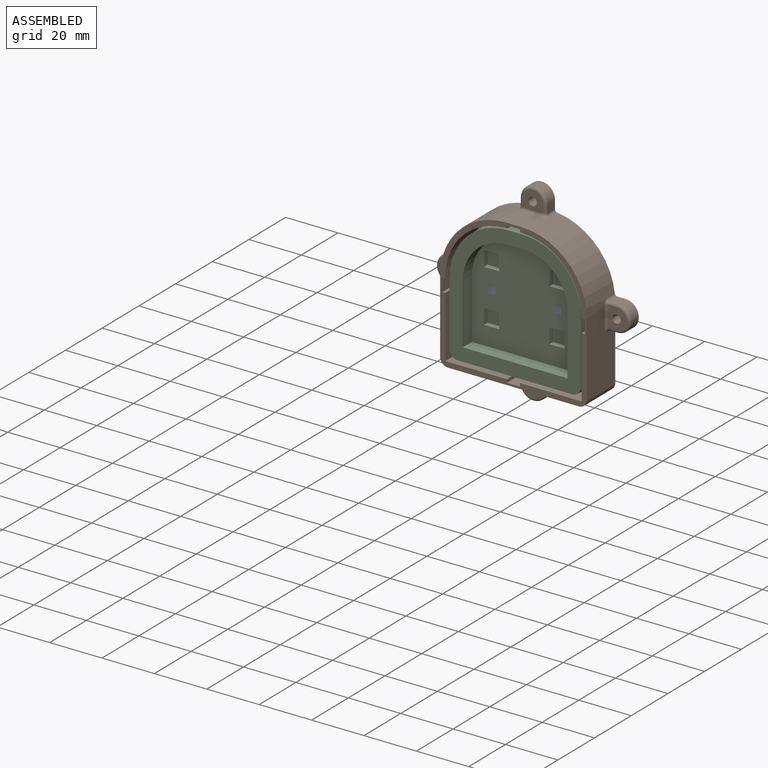
[diagram: assembled view]
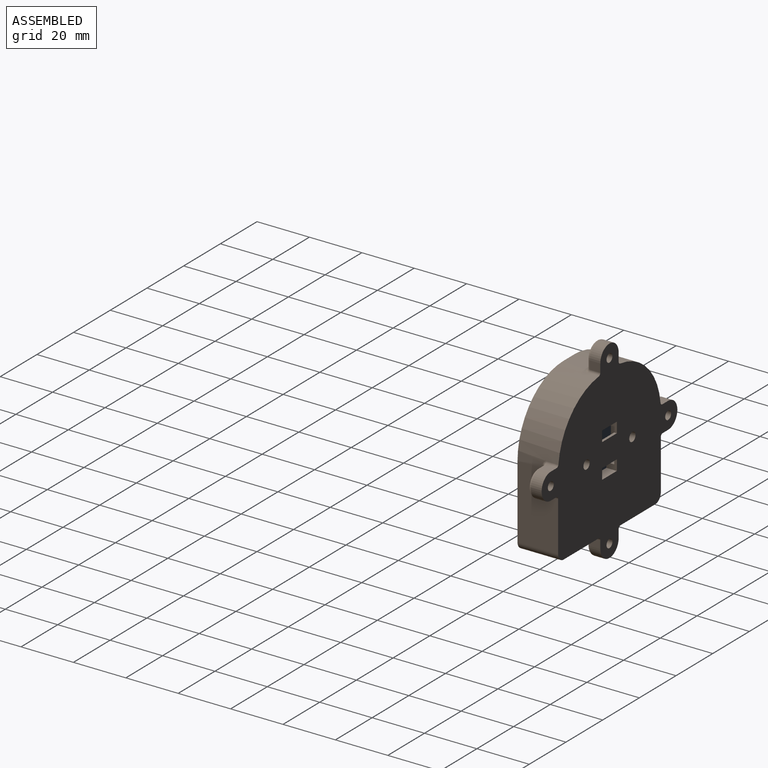
[diagram: assembled view, second angle]
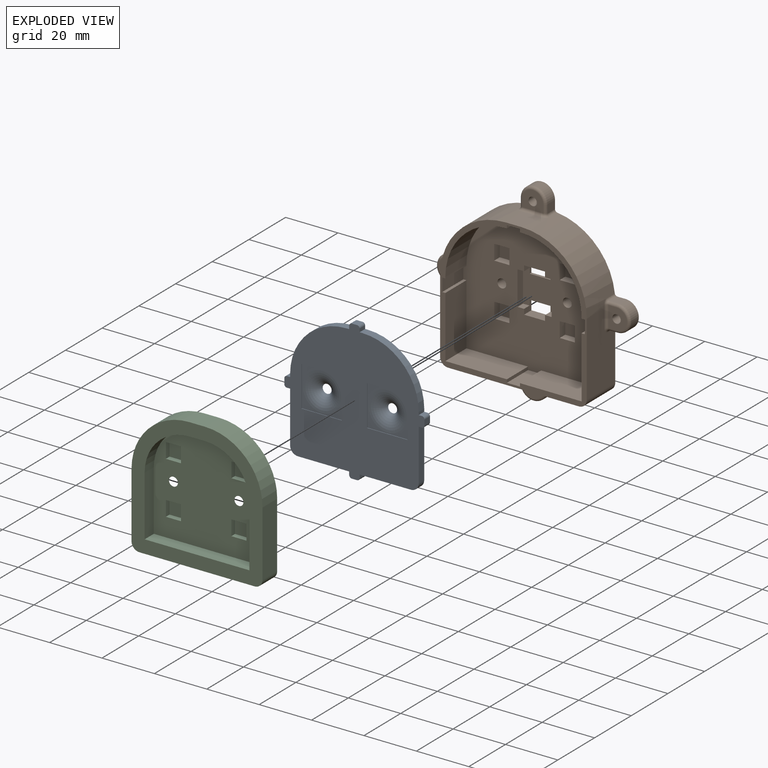
[diagram: exploded view]
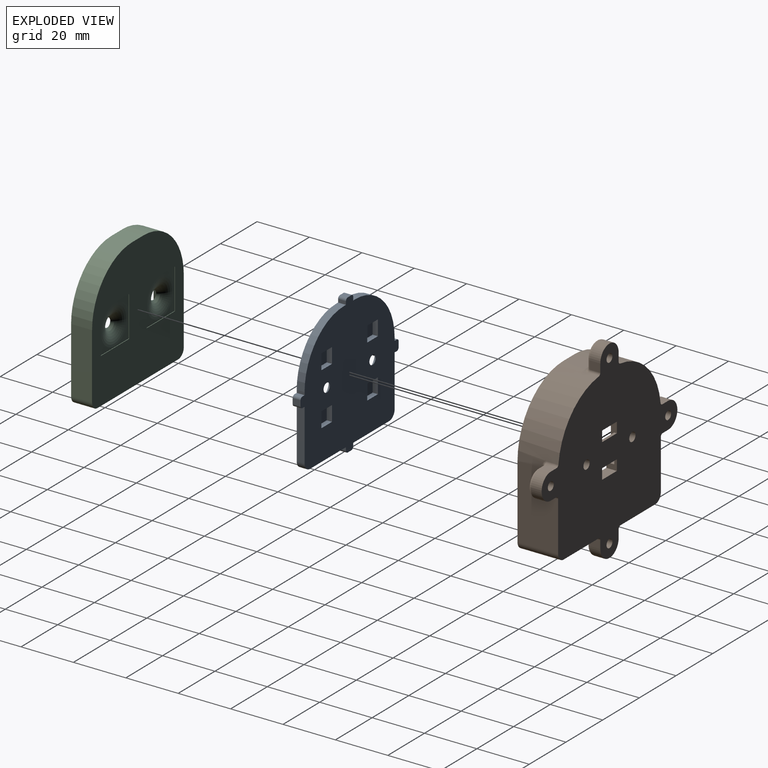
[diagram: exploded view, second angle]
ASSEMBLY  parts=3 mates=2
PART A: 66 faces, bbox 53.5x7.2x53.5 mm
  f0: plane 53.5x53.5mm, normal (0,-1,0), area 1767.7mm2, adj f2,f3,f4,f5,f6,f7,f8,f9
  f1: plane 53.5x53.5mm, normal (0,1,0), area 2089.3mm2, adj f2,f3,f4,f5,f6,f7,f8,f9
  f2: plane 19.55x3mm, normal (0,0,-1), area 58.6mm2, adj f0,f1,f3,f24
  f3: plane 3x1.2mm, normal (-1,0,0), area 3.6mm2, adj f0,f1,f2,f58
  f4: plane 3x2mm, normal (0,0,-1), area 6mm2, adj f0,f1,f58,f59
  f5: plane 3x1.2mm, normal (1,0,0), area 3.6mm2, adj f0,f1,f6,f59
  f6: plane 19.55x3mm, normal (0,0,-1), area 58.6mm2, adj f0,f1,f5,f25
  f7: plane 19.55x3mm, normal (1,0,0), area 58.6mm2, adj f0,f1,f8,f25
  f8: plane 3x1.2mm, normal (0,0,-1), area 3.6mm2, adj f0,f1,f7,f62
  f9: plane 3x2mm, normal (1,0,0), area 6mm2, adj f0,f1,f62,f63
  f10: plane 3x1.2mm, normal (0,0,1), area 3.6mm2, adj f0,f1,f11,f63
  f11: plane 3x1.05mm, normal (1,0,0), area 3.1mm2, adj f0,f1,f10,f12
  f12: cylinder r=21.5mm len=21.5mm, axis (0,1,0), area 101.3mm2, adj f0,f1,f11,f13
  f13: plane 3x1.05mm, normal (0,0,1), area 3.1mm2, adj f0,f1,f12,f14
  f14: plane 3x1.2mm, normal (1,0,0), area 3.6mm2, adj f0,f1,f13,f60
  f15: plane 3x2mm, normal (0,0,1), area 6mm2, adj f0,f1,f60,f61
  f16: plane 3x1.2mm, normal (-1,0,0), area 3.6mm2, adj f0,f1,f17,f61
  f17: plane 3x1.05mm, normal (0,0,1), area 3.2mm2, adj f0,f1,f16,f18
  f18: cylinder r=21.5mm len=21.5mm, axis (0,1,0), area 101.3mm2, adj f0,f1,f17,f19
  f19: plane 3x1.05mm, normal (-1,0,0), area 3.1mm2, adj f0,f1,f18,f20
  f20: plane 3x1.2mm, normal (0,0,1), area 3.6mm2, adj f0,f1,f19,f64
  f21: plane 3x2mm, normal (-1,0,0), area 6mm2, adj f0,f1,f64,f65
  f22: plane 3x1.2mm, normal (0,0,-1), area 3.6mm2, adj f0,f1,f23,f65
  f23: plane 19.55x3mm, normal (-1,0,0), area 58.6mm2, adj f0,f1,f22,f24
  f24: cylinder r=3mm len=3mm, axis (0,1,0), area 14.1mm2, adj f0,f1,f2,f23
  f25: cylinder r=3mm len=3mm, axis (0,-1,0), area 14.1mm2, adj f0,f1,f6,f7
  f26: plane 5.8x2mm, normal (0,0,1), area 11.6mm2, adj f1,f27,f29,f30
  f27: plane 5.8x2mm, normal (1,0,0), area 11.6mm2, adj f1,f26,f28,f30
  f28: plane 5.8x2mm, normal (0,0,-1), area 11.6mm2, adj f1,f27,f29,f30
  f29: plane 5.8x2mm, normal (-1,0,0), area 11.6mm2, adj f1,f26,f28,f30
  f30: plane 5.8x5.8mm, normal (0,1,0), area 33.6mm2, adj f26,f27,f28,f29
  f31: plane 5.8x2mm, normal (1,0,0), area 11.6mm2, adj f1,f32,f34,f35
  f32: plane 5.8x2mm, normal (0,0,-1), area 11.6mm2, adj f1,f31,f33,f35
  f33: plane 5.8x2mm, normal (-1,0,0), area 11.6mm2, adj f1,f32,f34,f35
  f34: plane 5.8x2mm, normal (0,0,1), area 11.6mm2, adj f1,f31,f33,f35
  f35: plane 5.8x5.8mm, normal (0,1,0), area 33.6mm2, adj f31,f32,f33,f34
  f36: plane 5.8x2mm, normal (0,0,1), area 11.6mm2, adj f1,f37,f39,f40
  f37: plane 5.8x2mm, normal (1,0,0), area 11.6mm2, adj f1,f36,f38,f40
  f38: plane 5.8x2mm, normal (0,0,-1), area 11.6mm2, adj f1,f37,f39,f40
  f39: plane 5.8x2mm, normal (-1,0,0), area 11.6mm2, adj f1,f36,f38,f40
  f40: plane 5.8x5.8mm, normal (0,1,0), area 33.6mm2, adj f36,f37,f38,f39
  f41: plane 5.8x2mm, normal (0,0,1), area 11.6mm2, adj f1,f42,f44,f45
  f42: plane 5.8x2mm, normal (1,0,0), area 11.6mm2, adj f1,f41,f43,f45
  f43: plane 5.8x2mm, normal (0,0,-1), area 11.6mm2, adj f1,f42,f44,f45
  f44: plane 5.8x2mm, normal (-1,0,0), area 11.6mm2, adj f1,f41,f43,f45
  f45: plane 5.8x5.8mm, normal (0,1,0), area 33.6mm2, adj f41,f42,f43,f44
  f46: plane 15.4x0.2mm, normal (0,0,-1), area 3.1mm2, adj f0,f47,f49,f50
  f47: plane 15.4x0.2mm, normal (1,0,0), area 3.1mm2, adj f0,f46,f48,f50
  f48: plane 15.4x0.2mm, normal (0,0,1), area 3.1mm2, adj f0,f47,f49,f50
  f49: plane 15.4x0.2mm, normal (-1,0,0), area 3.1mm2, adj f0,f46,f48,f50
  f50: plane 15.4x15.4mm, normal (0,-1,0), area 69.7mm2, adj f46,f47,f48,f49,f56
  f51: plane 15.4x0.2mm, normal (0,0,-1), area 3.1mm2, adj f0,f52,f54,f55
  f52: plane 15.4x0.2mm, normal (1,0,0), area 3.1mm2, adj f0,f51,f53,f55
  f53: plane 15.4x0.2mm, normal (0,0,1), area 3.1mm2, adj f0,f52,f54,f55
  f54: plane 15.4x0.2mm, normal (-1,0,0), area 3.1mm2, adj f0,f51,f53,f55
  f55: plane 15.4x15.4mm, normal (0,-1,0), area 69.7mm2, adj f51,f52,f53,f54,f57
  f56: torus R=7.3mm, axis (0,-1,0), area 174.6mm2, adj f1,f50
  f57: torus R=7.3mm, axis (0,-1,0), area 174.6mm2, adj f1,f55
  f58: cylinder r=1mm len=3mm, axis (0,1,0), area 4.7mm2, adj f0,f1,f3,f4
  f59: cylinder r=1mm len=3mm, axis (0,-1,0), area 4.7mm2, adj f0,f1,f4,f5
  f60: cylinder r=1mm len=3mm, axis (0,1,0), area 4.7mm2, adj f0,f1,f14,f15
  f61: cylinder r=1mm len=3mm, axis (0,-1,0), area 4.7mm2, adj f0,f1,f15,f16
  f62: cylinder r=1mm len=3mm, axis (0,-1,0), area 4.7mm2, adj f0,f1,f8,f9
  f63: cylinder r=1mm len=3mm, axis (0,1,0), area 4.7mm2, adj f0,f1,f9,f10
  f64: cylinder r=1mm len=3mm, axis (0,-1,0), area 4.7mm2, adj f0,f1,f20,f21
  f65: cylinder r=1mm len=3mm, axis (0,1,0), area 4.7mm2, adj f0,f1,f21,f22
PART B: 126 faces, bbox 74.8x15.5x74.8 mm
  f0: plane 54.4x54.4mm, normal (0,-1,0), area 2147.2mm2, adj f3,f4,f5,f6,f10,f11,f17,f18
  f1: cylinder r=25mm len=25mm, axis (0,1,0), area 575.7mm2, adj f7,f12,f13,f16,f94,f95,f96,f102
  f2: cylinder r=25mm len=25mm, axis (0,1,0), area 575.7mm2, adj f7,f12,f15,f16,f78,f79,f81,f87
  f3: plane 23.5x11.5mm, normal (0,0,1), area 270.2mm2, adj f0,f7,f20,f36
  f4: plane 11.5x0.5mm, normal (1,0,0), area 5.8mm2, adj f0,f7,f21,f42
  f5: plane 11.5x0.5mm, normal (0,0,-1), area 5.8mm2, adj f0,f7,f21,f47
  f6: plane 11.5x0.5mm, normal (-1,0,0), area 5.8mm2, adj f0,f7,f23,f39
  f7: plane 56x56mm, normal (0,-1,0), area 362.9mm2, adj f1,f2,f3,f4,f5,f6,f13,f14
  f8: plane 8x1mm, normal (0,0,-1), area 8mm2, adj f12,f25,f27,f35
  f9: plane 8x1mm, normal (0,0,1), area 8mm2, adj f10,f11,f12,f35
  f10: plane 4x4mm, normal (-1,0,0), area 10mm2, adj f0,f9,f12,f28,f31,f35
  f11: plane 4x4mm, normal (1,0,0), area 10mm2, adj f0,f9,f12,f28,f32,f35
  f12: plane 74x74mm, normal (0,1,0), area 3068.4mm2, adj f1,f2,f8,f9,f10,f11,f13,f14
  f13: plane 28x15.5mm, normal (-1,0,0), area 380.9mm2, adj f1,f7,f12,f48,f97,f98,f100
  f14: plane 50x15.5mm, normal (0,0,-1), area 704.7mm2, adj f7,f12,f48,f49,f70,f72,f74,f76
  f15: plane 28x15.5mm, normal (1,0,0), area 380.9mm2, adj f2,f7,f12,f49,f83,f85,f86
  f16: plane 9.5x6mm, normal (0,0,1), area 57mm2, adj f1,f2,f7,f92
  f17: cylinder r=1.7mm len=4mm, axis (0,1,0), area 42.7mm2, adj f0,f12
  f18: cylinder r=1.7mm len=4mm, axis (0,1,0), area 42.7mm2, adj f0,f12
  f19: plane 23.5x11.5mm, normal (0,0,1), area 270.2mm2, adj f0,f7,f24,f38
  f20: plane 23.5x11.5mm, normal (1,0,0), area 270.2mm2, adj f0,f3,f7,f44
  f21: cylinder r=23mm len=23mm, axis (0,1,0), area 415.5mm2, adj f0,f4,f5,f7
  f22: plane 11.5x0.5mm, normal (0,0,-1), area 5.8mm2, adj f0,f7,f23,f45
  f23: cylinder r=23mm len=23mm, axis (0,1,0), area 415.5mm2, adj f0,f6,f7,f22
  f24: plane 23.5x11.5mm, normal (-1,0,0), area 270.2mm2, adj f0,f7,f19,f40
  f25: plane 4x4mm, normal (1,0,0), area 10mm2, adj f0,f8,f12,f26,f34,f35
  f26: plane 8x4mm, normal (0,0,1), area 32mm2, adj f0,f12,f25,f27
  f27: plane 4x4mm, normal (-1,0,0), area 10mm2, adj f0,f8,f12,f26,f29,f35
  f28: plane 8x4mm, normal (0,0,-1), area 32mm2, adj f0,f10,f11,f12
  f29: plane 3x2.5mm, normal (0,0,1), area 7.5mm2, adj f0,f27,f30,f35
  f30: plane 13x3mm, normal (-1,0,0), area 39mm2, adj f0,f29,f31,f35
  f31: plane 3x2.5mm, normal (0,0,-1), area 7.5mm2, adj f0,f10,f30,f35
  f32: plane 3x2.5mm, normal (0,0,-1), area 7.5mm2, adj f0,f11,f33,f35
  f33: plane 13x3mm, normal (1,0,0), area 39mm2, adj f0,f32,f34,f35
  f34: plane 3x2.5mm, normal (0,0,1), area 7.5mm2, adj f0,f25,f33,f35
  f35: plane 13x13mm, normal (0,-1,0), area 137mm2, adj f8,f9,f10,f11,f25,f27,f29,f30
  f36: plane 11.5x1.2mm, normal (1,0,0), area 13.8mm2, adj f0,f3,f7,f37
  f37: plane 11.5x5mm, normal (0,0,1), area 57.5mm2, adj f0,f7,f36,f38
  f38: plane 11.5x1.2mm, normal (-1,0,0), area 13.8mm2, adj f0,f7,f19,f37
  f39: plane 11.5x1.2mm, normal (0,0,-1), area 13.8mm2, adj f0,f6,f7,f41
  f40: plane 11.5x1.2mm, normal (0,0,1), area 13.8mm2, adj f0,f7,f24,f41
  f41: plane 11.5x5mm, normal (-1,0,0), area 57.5mm2, adj f0,f7,f39,f40
  f42: plane 11.5x1.2mm, normal (0,0,-1), area 13.8mm2, adj f0,f4,f7,f43
  f43: plane 11.5x5mm, normal (1,0,0), area 57.5mm2, adj f0,f7,f42,f44
  f44: plane 11.5x1.2mm, normal (0,0,1), area 13.8mm2, adj f0,f7,f20,f43
  f45: plane 11.5x1.2mm, normal (-1,0,0), area 13.8mm2, adj f0,f7,f22,f46
  f46: plane 11.5x5mm, normal (0,0,-1), area 57.5mm2, adj f0,f7,f45,f47
  f47: plane 11.5x1.2mm, normal (1,0,0), area 13.8mm2, adj f0,f5,f7,f46
  f48: cylinder r=3mm len=15.5mm, axis (0,1,0), area 73mm2, adj f7,f12,f13,f14
  f49: cylinder r=3mm len=15.5mm, axis (0,-1,0), area 73mm2, adj f7,f12,f14,f15
  f50: plane 4x3.17mm, normal (1,0,0), area 12.7mm2, adj f12,f51,f87,f89
  f51: cylinder r=5mm len=10mm, axis (0,1,0), area 62.8mm2, adj f12,f50,f52,f91
  f52: plane 4x3.17mm, normal (-1,0,0), area 12.7mm2, adj f12,f51,f93,f96
  f53: cylinder r=1.6mm len=5mm, axis (0,1,0), area 50.3mm2, adj f12,f54
  f54: plane 8x7.02mm, normal (0,-1,0), area 41.1mm2, adj f53,f89,f90,f91,f92,f93,f94
  f55: plane 4x3mm, normal (-1,0,0), area 12mm2, adj f12,f56,f75,f77
  f56: cylinder r=5mm len=10mm, axis (0,1,0), area 62.8mm2, adj f12,f55,f57,f73
  f57: plane 4x3mm, normal (1,0,0), area 12mm2, adj f12,f56,f70,f71
  f58: cylinder r=1.6mm len=5mm, axis (0,1,0), area 50.3mm2, adj f12,f59
  f59: plane 8x7mm, normal (0,-1,0), area 41.1mm2, adj f58,f71,f73,f74,f75
  f60: plane 4x3.17mm, normal (0,0,1), area 12.7mm2, adj f12,f61,f103,f105
  f61: cylinder r=5mm len=10mm, axis (0,1,0), area 62.8mm2, adj f12,f60,f62,f101
  f62: plane 4x3mm, normal (0,0,-1), area 12mm2, adj f12,f61,f97,f99
  f63: cylinder r=1.6mm len=5mm, axis (0,1,0), area 50.3mm2, adj f12,f64
  f64: plane 8x7.02mm, normal (0,-1,0), area 41.1mm2, adj f63,f99,f100,f101,f102,f103
  f65: plane 4x3mm, normal (0,0,-1), area 12mm2, adj f12,f66,f84,f86
  f66: cylinder r=5mm len=10mm, axis (0,1,0), area 62.8mm2, adj f12,f65,f67,f82
  f67: plane 4x3.17mm, normal (0,0,1), area 12.7mm2, adj f12,f66,f78,f80
  f68: cylinder r=1.6mm len=5mm, axis (0,1,0), area 50.3mm2, adj f12,f69
  f69: plane 8x7.02mm, normal (0,-1,0), area 41.1mm2, adj f68,f80,f81,f82,f83,f84
  f70: cylinder r=1mm len=4mm, axis (0,-1,0), area 6.3mm2, adj f12,f14,f57,f72
  f71: cylinder r=1mm len=3mm, axis (0,0,-1), area 4.7mm2, adj f57,f59,f72,f73
  f72: torus R=2mm, axis (0,0,1), area 3.4mm2, adj f14,f70,f71,f74
  f73: torus R=4mm, axis (0,-1,0), area 22.9mm2, adj f56,f59,f71,f75
  f74: cylinder r=1mm len=8mm, axis (1,0,0), area 12.6mm2, adj f14,f59,f72,f76
  f75: cylinder r=1mm len=3mm, axis (0,0,1), area 4.7mm2, adj f55,f59,f73,f76
  f76: torus R=2mm, axis (0,0,1), area 3.4mm2, adj f14,f74,f75,f77
  f77: cylinder r=1mm len=4mm, axis (0,1,0), area 6.3mm2, adj f12,f14,f55,f76
  f78: cylinder r=1mm len=4mm, axis (0,1,0), area 5.8mm2, adj f2,f12,f67,f79
  f79: bspline ~2.35x2.35mm, area 3.2mm2, adj f2,f78,f80,f81
  f80: cylinder r=1mm len=3.17mm, axis (1,0,0), area 4.9mm2, adj f67,f69,f79,f82
  f81: torus R=26mm, axis (0,-1,0), area 1.5mm2, adj f2,f69,f79,f83
  f82: torus R=4mm, axis (0,-1,0), area 22.9mm2, adj f66,f69,f80,f84
  f83: cylinder r=1mm len=7mm, axis (0,0,1), area 11mm2, adj f15,f69,f81,f85
  f84: cylinder r=1mm len=3mm, axis (-1,0,0), area 4.7mm2, adj f65,f69,f82,f85
  f85: torus R=2mm, axis (1,0,0), area 3.4mm2, adj f15,f83,f84,f86
  f86: cylinder r=1mm len=4mm, axis (0,-1,0), area 6.3mm2, adj f12,f15,f65,f85
  f87: cylinder r=1mm len=4mm, axis (0,1,0), area 5.8mm2, adj f2,f12,f50,f88
  f88: bspline ~2.45x2.25mm, area 3.2mm2, adj f2,f87,f89,f90
  f89: cylinder r=1mm len=3.17mm, axis (0,0,-1), area 4.9mm2, adj f50,f54,f88,f91
  f90: torus R=26mm, axis (0,-1,0), area 1.5mm2, adj f2,f54,f88,f92
  f91: torus R=4mm, axis (0,-1,0), area 22.9mm2, adj f51,f54,f89,f93
  f92: cylinder r=1mm len=6mm, axis (-1,0,0), area 9.4mm2, adj f16,f54,f90,f94
  f93: cylinder r=1mm len=3.17mm, axis (0,0,1), area 4.9mm2, adj f52,f54,f91,f95
  f94: torus R=26mm, axis (0,-1,0), area 1.5mm2, adj f1,f54,f92,f95
  f95: bspline ~2.35x2.35mm, area 3.2mm2, adj f1,f93,f94,f96
  f96: cylinder r=1mm len=4mm, axis (0,1,0), area 5.8mm2, adj f1,f12,f52,f95
  f97: cylinder r=1mm len=4mm, axis (0,-1,0), area 6.3mm2, adj f12,f13,f62,f98
  f98: torus R=2mm, axis (1,0,0), area 3.4mm2, adj f13,f97,f99,f100
  f99: cylinder r=1mm len=3mm, axis (-1,0,0), area 4.7mm2, adj f62,f64,f98,f101
  f100: cylinder r=1mm len=7mm, axis (0,0,-1), area 11mm2, adj f13,f64,f98,f102
  f101: torus R=4mm, axis (0,-1,0), area 22.9mm2, adj f61,f64,f99,f103
  f102: torus R=26mm, axis (0,-1,0), area 1.5mm2, adj f1,f64,f100,f104
  f103: cylinder r=1mm len=3.17mm, axis (1,0,0), area 4.9mm2, adj f60,f64,f101,f104
  f104: bspline ~2.45x2.25mm, area 3.2mm2, adj f1,f102,f103,f105
  f105: cylinder r=1mm len=4mm, axis (0,1,0), area 5.8mm2, adj f1,f12,f60,f104
  f106: plane 5.8x3mm, normal (0,0,-1), area 17.4mm2, adj f0,f107,f109,f110
  f107: plane 5.8x3mm, normal (1,0,0), area 17.4mm2, adj f0,f106,f108,f110
  f108: plane 5.8x3mm, normal (0,0,1), area 17.4mm2, adj f0,f107,f109,f110
  f109: plane 5.8x3mm, normal (-1,0,0), area 17.4mm2, adj f0,f106,f108,f110
  f110: plane 5.8x5.8mm, normal (0,-1,0), area 33.6mm2, adj f106,f107,f108,f109
  f111: plane 5.8x3mm, normal (0,0,-1), area 17.4mm2, adj f0,f112,f114,f115
  f112: plane 5.8x3mm, normal (1,0,0), area 17.4mm2, adj f0,f111,f113,f115
  f113: plane 5.8x3mm, normal (0,0,1), area 17.4mm2, adj f0,f112,f114,f115
  f114: plane 5.8x3mm, normal (-1,0,0), area 17.4mm2, adj f0,f111,f113,f115
  f115: plane 5.8x5.8mm, normal (0,-1,0), area 33.6mm2, adj f111,f112,f113,f114
  f116: plane 5.8x3mm, normal (1,0,0), area 17.4mm2, adj f0,f117,f119,f120
  f117: plane 5.8x3mm, normal (0,0,1), area 17.4mm2, adj f0,f116,f118,f120
  f118: plane 5.8x3mm, normal (-1,0,0), area 17.4mm2, adj f0,f117,f119,f120
  f119: plane 5.8x3mm, normal (0,0,-1), area 17.4mm2, adj f0,f116,f118,f120
  f120: plane 5.8x5.8mm, normal (0,-1,0), area 33.6mm2, adj f116,f117,f118,f119
  f121: plane 5.8x3mm, normal (1,0,0), area 17.4mm2, adj f0,f122,f124,f125
  f122: plane 5.8x3mm, normal (0,0,1), area 17.4mm2, adj f0,f121,f123,f125
  f123: plane 5.8x3mm, normal (-1,0,0), area 17.4mm2, adj f0,f122,f124,f125
  f124: plane 5.8x3mm, normal (0,0,-1), area 17.4mm2, adj f0,f121,f123,f125
  f125: plane 5.8x5.8mm, normal (0,-1,0), area 33.6mm2, adj f121,f122,f123,f124
PART C: 49 faces, bbox 50x8x50 mm
  f0: plane 40x40mm, normal (0,-1,0), area 1323.2mm2, adj f8,f9,f10,f11,f12,f13,f27,f28
  f1: plane 50x50mm, normal (0,1,0), area 1814.1mm2, adj f2,f3,f4,f5,f6,f7,f15,f16
  f2: plane 8x6mm, normal (0,0,1), area 48mm2, adj f1,f3,f7,f14
  f3: cylinder r=22mm len=22mm, axis (0,1,0), area 276.5mm2, adj f1,f2,f4,f14
  f4: plane 25x8mm, normal (-1,0,0), area 200mm2, adj f1,f3,f14,f26
  f5: plane 44x8mm, normal (0,0,-1), area 352mm2, adj f1,f14,f25,f26
  f6: plane 25x8mm, normal (1,0,0), area 200mm2, adj f1,f7,f14,f25
  f7: cylinder r=22mm len=22mm, axis (0,1,0), area 276.5mm2, adj f1,f2,f6,f14
  f8: plane 40x5mm, normal (0,0,1), area 200mm2, adj f0,f9,f13,f14
  f9: plane 23x5mm, normal (1,0,0), area 115mm2, adj f0,f8,f10,f14
  f10: cylinder r=17mm len=17mm, axis (0,1,0), area 133.5mm2, adj f0,f9,f11,f14
  f11: plane 6x5mm, normal (0,0,-1), area 30mm2, adj f0,f10,f12,f14
  f12: cylinder r=17mm len=17mm, axis (0,1,0), area 133.5mm2, adj f0,f11,f13,f14
  f13: plane 23x5mm, normal (-1,0,0), area 115mm2, adj f0,f8,f12,f14
  f14: plane 50x50mm, normal (0,-1,0), area 812.4mm2, adj f2,f3,f4,f5,f6,f7,f8,f9
  f15: plane 15.4x0.2mm, normal (0,0,-1), area 3.1mm2, adj f1,f16,f18,f19
  f16: plane 15.4x0.2mm, normal (-1,0,0), area 3.1mm2, adj f1,f15,f17,f19
  f17: plane 15.4x0.2mm, normal (0,0,1), area 3.1mm2, adj f1,f16,f18,f19
  f18: plane 15.4x0.2mm, normal (1,0,0), area 3.1mm2, adj f1,f15,f17,f19
  f19: plane 15.4x15.4mm, normal (0,1,0), area 69.7mm2, adj f15,f16,f17,f18,f47
  f20: plane 15.4x0.2mm, normal (0,0,-1), area 3.1mm2, adj f1,f21,f23,f24
  f21: plane 15.4x0.2mm, normal (-1,0,0), area 3.1mm2, adj f1,f20,f22,f24
  f22: plane 15.4x0.2mm, normal (0,0,1), area 3.1mm2, adj f1,f21,f23,f24
  f23: plane 15.4x0.2mm, normal (1,0,0), area 3.1mm2, adj f1,f20,f22,f24
  f24: plane 15.4x15.4mm, normal (0,1,0), area 69.7mm2, adj f20,f21,f22,f23,f48
  f25: cylinder r=3mm len=8mm, axis (0,-1,0), area 37.7mm2, adj f1,f5,f6,f14
  f26: cylinder r=3mm len=8mm, axis (0,1,0), area 37.7mm2, adj f1,f4,f5,f14
  f27: plane 5.8x2mm, normal (0,0,1), area 11.6mm2, adj f0,f28,f30,f31
  f28: plane 5.8x2mm, normal (-1,0,0), area 11.6mm2, adj f0,f27,f29,f31
  f29: plane 5.8x2mm, normal (0,0,-1), area 11.6mm2, adj f0,f28,f30,f31
  f30: plane 5.8x2mm, normal (1,0,0), area 11.6mm2, adj f0,f27,f29,f31
  f31: plane 5.8x5.8mm, normal (0,-1,0), area 33.6mm2, adj f27,f28,f29,f30
  f32: plane 5.8x2mm, normal (0,0,1), area 11.6mm2, adj f0,f33,f35,f36
  f33: plane 5.8x2mm, normal (-1,0,0), area 11.6mm2, adj f0,f32,f34,f36
  f34: plane 5.8x2mm, normal (0,0,-1), area 11.6mm2, adj f0,f33,f35,f36
  f35: plane 5.8x2mm, normal (1,0,0), area 11.6mm2, adj f0,f32,f34,f36
  f36: plane 5.8x5.8mm, normal (0,-1,0), area 33.6mm2, adj f32,f33,f34,f35
  f37: plane 5.8x2mm, normal (0,0,1), area 11.6mm2, adj f0,f38,f40,f41
  f38: plane 5.8x2mm, normal (-1,0,0), area 11.6mm2, adj f0,f37,f39,f41
  f39: plane 5.8x2mm, normal (0,0,-1), area 11.6mm2, adj f0,f38,f40,f41
  f40: plane 5.8x2mm, normal (1,0,0), area 11.6mm2, adj f0,f37,f39,f41
  f41: plane 5.8x5.8mm, normal (0,-1,0), area 33.6mm2, adj f37,f38,f39,f40
  f42: plane 5.8x2mm, normal (0,0,1), area 11.6mm2, adj f0,f43,f45,f46
  f43: plane 5.8x2mm, normal (-1,0,0), area 11.6mm2, adj f0,f42,f44,f46
  f44: plane 5.8x2mm, normal (0,0,-1), area 11.6mm2, adj f0,f43,f45,f46
  f45: plane 5.8x2mm, normal (1,0,0), area 11.6mm2, adj f0,f42,f44,f46
  f46: plane 5.8x5.8mm, normal (0,-1,0), area 33.6mm2, adj f42,f43,f44,f45
  f47: torus R=7.3mm, axis (0,1,0), area 174.6mm2, adj f0,f19
  f48: torus R=7.3mm, axis (0,1,0), area 174.6mm2, adj f0,f24
PLACE A t=(-47.35,-29.03,-21.15)mm
PLACE B t=(10.25,-25.03,-26.03)mm
PLACE C t=(-1.32,-31.63,-0.57)mm
MATE fastened A.f1 <-> B.f0  axis (0,1,0) through (15.89,-29.03,-15.52)mm
MATE fastened C.f48 <-> A.f57  axis (0,1,0) through (15.89,-31.83,-5.52)mm
